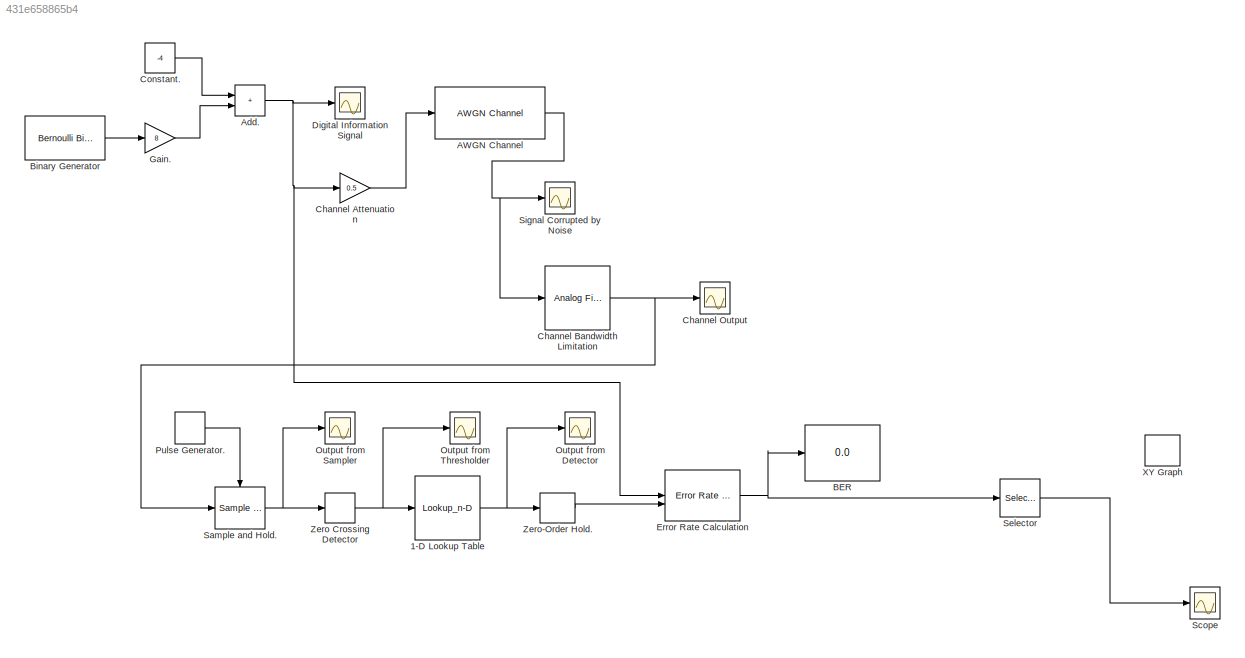
MODEL slx_431e658865b4
KIND model
CONFIG AbsTol = auto
CONFIG EnableMultiTasking = off
CONFIG FixedStep = auto
CONFIG MaxStep = auto
CONFIG MinStep = auto
CONFIG RelTol = 1e-3
CONFIG SampleTimeConstraint = Unconstrained
CONFIG SolverName = VariableStepAuto
CONFIG StartTime = 0.0
CONFIG StopTime = 100
BLOCK [Lookup_n-D] 1-D Lookup Table
  BreakpointsForDimension1 = [-1,1]
  InputPortMap = u0
  InternalRulePriority = Speed
  NumberOfTableDimensions = 1
  RndMeth = Simplest
  Table = [-4,4]
BLOCK [Reference] AWGN Channel  REF=commchan3/AWGN
Channel
  SourceBlock = commchan3/AWGN\nChannel
  SourceType = AWGN Channel
BLOCK [Sum] Add.
  IconShape = rectangular
BLOCK [Display] BER
  Decimation = 1
BLOCK [Reference] Binary Generator  REF=commrandsrc3/Bernoulli Binary
Generator
  SourceBlock = commrandsrc3/Bernoulli Binary\nGenerator
  SourceType = Bernoulli Binary Generator
BLOCK [Gain] Channel Attenuation
  Gain = 0.5
BLOCK [Reference] Channel Bandwidth Limitation  REF=dspfdesign/Analog
Filter Design
  SourceBlock = dspfdesign/Analog\nFilter Design
  SourceType = Analog Filter Design
BLOCK [Scope] Channel Output
  Floating = off
  NumInputPorts = 1
  ScopeSpecificationString = Simulink.scopes.TimeScopeBlockCfg('CurrentConfiguration', extmgr.ConfigurationSet(extmgr.Configuration('Core','General UI',true),extmgr.Configuration('Core','Source UI',true),extmgr.Configuration('Sources','WiredSimulink',true),extmgr.Configuration('Visuals','Time Domain',true,'SerializedDisplays',{struct('MinYLimReal','-5.31791','MaxYLimReal','5.35315','YLabelReal','','MinYLimMag','0.00000','MaxY...<+1402ch>
BLOCK [Constant] Constant.
  Value = -4
BLOCK [Scope] Digital Information Signal
  Floating = off
  NumInputPorts = 1
  ScopeSpecificationString = Simulink.scopes.TimeScopeBlockCfg('CurrentConfiguration', extmgr.ConfigurationSet(extmgr.Configuration('Core','General UI',true),extmgr.Configuration('Core','Source UI',true),extmgr.Configuration('Sources','WiredSimulink',true,'DataLoggingVariableName','ScopeData5'),extmgr.Configuration('Visuals','Time Domain',true,'SerializedDisplays',{struct('MinYLimReal','-5.00000','MaxYLimReal','5.00000','YLab...<+1439ch>
BLOCK [Reference] Error Rate Calculation  REF=commsink2/Error Rate
Calculation
  SourceBlock = commsink2/Error Rate\nCalculation
  SourceType = Error Rate Calculation
BLOCK [Gain] Gain.
  Gain = 8
BLOCK [Scope] Output from Detector
  Floating = off
  NumInputPorts = 1
  ScopeSpecificationString = Simulink.scopes.TimeScopeBlockCfg('CurrentConfiguration', extmgr.ConfigurationSet(extmgr.Configuration('Core','General UI',true),extmgr.Configuration('Core','Source UI',true),extmgr.Configuration('Sources','WiredSimulink',true,'DataLoggingVariableName','ScopeData2'),extmgr.Configuration('Visuals','Time Domain',true,'SerializedDisplays',{struct('MinYLimReal','-5.00000','MaxYLimReal','5.00000','YLab...<+1406ch>
BLOCK [Scope] Output from Sampler
  Floating = off
  NumInputPorts = 1
  ScopeSpecificationString = Simulink.scopes.TimeScopeBlockCfg('CurrentConfiguration', extmgr.ConfigurationSet(extmgr.Configuration('Core','General UI',true),extmgr.Configuration('Core','Source UI',true),extmgr.Configuration('Sources','WiredSimulink',true,'DataLoggingVariableName','ScopeData4'),extmgr.Configuration('Visuals','Time Domain',true,'SerializedDisplays',{struct('MinYLimReal','-1.06879','MaxYLimReal','0.07323','YLab...<+1430ch>
BLOCK [Scope] Output from Thresholder
  Floating = off
  NumInputPorts = 1
  ScopeSpecificationString = Simulink.scopes.TimeScopeBlockCfg('CurrentConfiguration', extmgr.ConfigurationSet(extmgr.Configuration('Core','General UI',true),extmgr.Configuration('Core','Source UI',true),extmgr.Configuration('Sources','WiredSimulink',true,'DataLoggingVariableName','ScopeData3'),extmgr.Configuration('Visuals','Time Domain',true,'SerializedDisplays',{struct('MinYLimReal','-1.25','MaxYLimReal','1.25','YLabelReal...<+1364ch>
BLOCK [DiscretePulseGenerator] Pulse Generator.
  Period = 0.1
  PulseType = Time based
  PulseWidth = 50
BLOCK [Reference] Sample and Hold.  REF=dspsigops/Sample
and Hold
  SourceBlock = dspsigops/Sample\nand Hold
  SourceType = Sample and Hold
BLOCK [Scope] Scope
  Floating = off
  NumInputPorts = 1
  ScopeSpecificationString = Simulink.scopes.TimeScopeBlockCfg('CurrentConfiguration', extmgr.ConfigurationSet(extmgr.Configuration('Core','General UI',true),extmgr.Configuration('Core','Source UI',true),extmgr.Configuration('Sources','WiredSimulink',true,'DataLoggingVariableName','ScopeData1'),extmgr.Configuration('Visuals','Time Domain',true,'SerializedDisplays',{struct('MinYLimReal','-0.00027','MaxYLimReal','0.0024','YLabe...<+1423ch>
BLOCK [Selector] Selector
  IndexOptions = Index vector (dialog)
  Indices = [1]
  InputPortWidth = 3
  OutputSizes = 1
BLOCK [Scope] Signal Corrupted by Noise
  Floating = off
  NumInputPorts = 1
  ScopeSpecificationString = Simulink.scopes.TimeScopeBlockCfg('CurrentConfiguration', extmgr.ConfigurationSet(extmgr.Configuration('Core','General UI',true),extmgr.Configuration('Core','Source UI',true),extmgr.Configuration('Sources','WiredSimulink',true,'DataLoggingVariableName','ScopeData1'),extmgr.Configuration('Visuals','Time Domain',true,'SerializedDisplays',{struct('MinYLimReal','-6.68429','MaxYLimReal','7.10991','YLab...<+1446ch>
BLOCK [Record] XY Graph
  CompatibilityTag = XY
  FileSettingsInternal = {"entries":[{"content":{"excelSettings":{"content":{},"type":"Streamout.ExcelSettings"}},"type":"Streamout.FileSettingStorage","uuid":"fcca9526-da08-4939-8b08-3b77a2af3b0d"}],"packageUris":["http://schema.mathworks.com/mf0/streamout_blocks/R2020a"],"version":"1.0"}
  Layout = [1 1]
  SignalsInternal = {"entries":[{"content":{"signals":[{"content":{"blockPath":["DigitalChannel/XY Graph"],"dimensions":[1],"domain":"DigitalChannel/XY Graph","lineColor":"#a2142f","plots":[1],"port":1,"sid":[""],"signalID":2067},"type":"RecordBlkView.Signal","uuid":"8fabe924-985a-4adb-84db-5ec980484a71"},{"content":{"blockPath":["DigitalChannel/XY Graph"],"dimensions":[1],"domain":"DigitalChannel/XY Graph","lineColo...<+315ch>
  VisualizationBindings = {"xyplotplugin":{"info":[{"series":[{"bindingParametersList":[{"parameter":"X-Axis","signalID":2067,"signalName":"XY Graph:1"},{"parameter":"Y-Axis","signalID":2071,"signalName":"XY Graph:2"}],"seriesID":25760}],"subplotID":1}]}}
BLOCK [Signum] Zero Crossing Detector
BLOCK [ZeroOrderHold] Zero-Order Hold.
  SampleTime = 0.1
NET 1-D Lookup Table:1 -> Output from Detector:1, Zero-Order Hold.:1
NET AWGN Channel:1 -> Channel Bandwidth Limitation:1, Signal Corrupted by Noise:1
NET Add.:1 -> Channel Attenuation:1, Digital Information Signal:1, Error Rate Calculation:1
LINE Binary Generator:1 -> Gain.:1
LINE Channel Attenuation:1 -> AWGN Channel:1
NET Channel Bandwidth Limitation:1 -> Channel Output:1, Sample and Hold.:1
LINE Constant.:1 -> Add.:1
NET Error Rate Calculation:1 -> BER:1, Selector:1
LINE Gain.:1 -> Add.:2
LINE Pulse Generator.:1 -> Sample and Hold.:trigger
NET Sample and Hold.:1 -> Output from Sampler:1, Zero Crossing Detector:1
LINE Selector:1 -> Scope:1
NET Zero Crossing Detector:1 -> 1-D Lookup Table:1, Output from Thresholder:1
LINE Zero-Order Hold.:1 -> Error Rate Calculation:2
note: NET lines group one-source signal fan-out (src -> all destinations, sorted); 1:1 wires keep LINE
